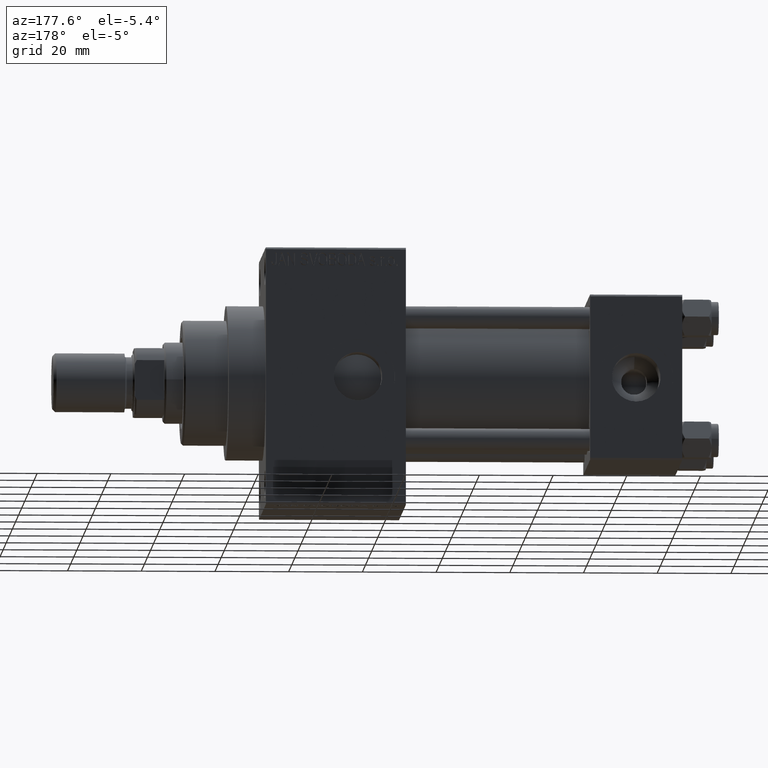
[diagram: clean part render]
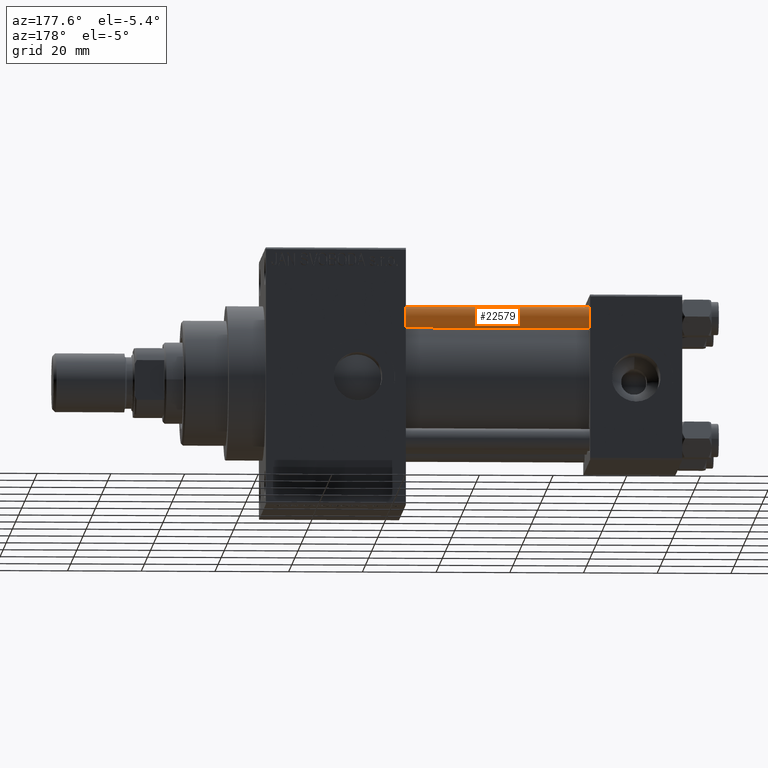
[diagram: same view with one face highlighted and labeled with its STEP entity id]
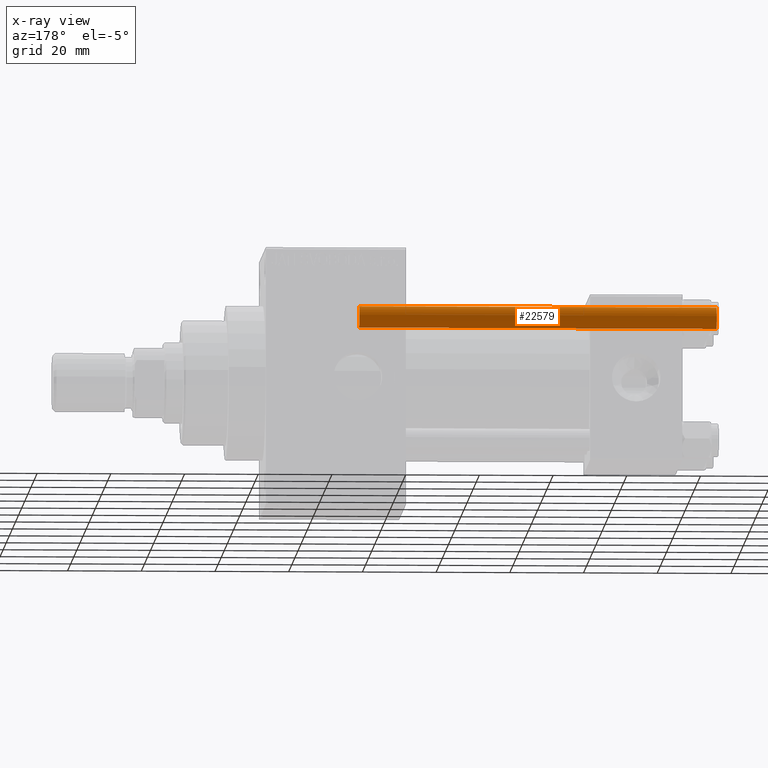
[diagram: x-ray of the same camera — body ghosted, the highlighted face saturated]
A machine part, auxiliary view. The second image highlights one B-rep face of the part: STEP entity #22579.
The next image is the same camera in x-ray: the body ghosted, the highlighted face saturated — about 0% of this face is hidden behind the body in this view.
In plain terms, the highlighted cylindrical surface (edge-blend (fillet) strip) has radius 3 mm, axis along (-1, -0, 0).
Its self-contained STEP definition (entity closure, byte-faithful):
#327 = CARTESIAN_POINT ( 'NONE',  ( -3.000000000000000444, 0.000000000000000000, 0.5000000000000281997 ) ) ;
#563 = CIRCLE ( 'NONE', #12870, 3.000000000000000444 ) ;
#1284 = CARTESIAN_POINT ( 'NONE',  ( 3.000000000000000444, 3.673940397442060361E-16, 97.50000000000001421 ) ) ;
#1627 = DIRECTION ( 'NONE',  ( 1.000000000000000000, 0.000000000000000000, 0.000000000000000000 ) ) ;
#2084 = DIRECTION ( 'NONE',  ( 0.000000000000000000, 0.000000000000000000, -1.000000000000000000 ) ) ;
#2355 = EDGE_LOOP ( 'NONE', ( #14123, #35259, #3700, #24264 ) ) ;
#2772 = CARTESIAN_POINT ( 'NONE',  ( -3.000000000000000444, 0.000000000000000000, 98.00000000000000000 ) ) ;
#3005 = VERTEX_POINT ( 'NONE', #30999 ) ;
#3700 = ORIENTED_EDGE ( 'NONE', *, *, #19713, .T. ) ;
#4019 = CARTESIAN_POINT ( 'NONE',  ( 0.000000000000000000, 0.000000000000000000, 0.5000000000000281997 ) ) ;
#9615 = CYLINDRICAL_SURFACE ( 'NONE', #31689, 3.000000000000000444 ) ;
#10640 = CARTESIAN_POINT ( 'NONE',  ( -3.000000000000000444, 0.000000000000000000, 97.50000000000001421 ) ) ;
#12030 = EDGE_CURVE ( 'NONE', #36146, #3005, #32709, .T. ) ;
#12524 = DIRECTION ( 'NONE',  ( -1.000000000000000000, 0.000000000000000000, 0.000000000000000000 ) ) ;
#12870 = AXIS2_PLACEMENT_3D ( 'NONE', #42728, #2084, #1627 ) ;
#13219 = DIRECTION ( 'NONE',  ( -0.000000000000000000, -0.000000000000000000, -1.000000000000000000 ) ) ;
#14123 = ORIENTED_EDGE ( 'NONE', *, *, #45793, .T. ) ;
#14435 = CARTESIAN_POINT ( 'NONE',  ( 3.000000000000000444, 3.673940397442060361E-16, 98.00000000000000000 ) ) ;
#14736 = AXIS2_PLACEMENT_3D ( 'NONE', #4019, #22320, #39464 ) ;
#19713 = EDGE_CURVE ( 'NONE', #3005, #29223, #25485, .T. ) ;
#22320 = DIRECTION ( 'NONE',  ( -0.000000000000000000, -0.000000000000000000, 1.000000000000000000 ) ) ;
#22579 = ADVANCED_FACE ( 'NONE', ( #38037 ), #9615, .T. ) ;
#24067 = CARTESIAN_POINT ( 'NONE',  ( 0.000000000000000000, 0.000000000000000000, 98.00000000000000000 ) ) ;
#24082 = VERTEX_POINT ( 'NONE', #10640 ) ;
#24264 = ORIENTED_EDGE ( 'NONE', *, *, #31293, .F. ) ;
#24675 = LINE ( 'NONE', #2772, #38069 ) ;
#25485 = CIRCLE ( 'NONE', #14736, 3.000000000000000444 ) ;
#29111 = DIRECTION ( 'NONE',  ( -0.000000000000000000, -0.000000000000000000, -1.000000000000000000 ) ) ;
#29223 = VERTEX_POINT ( 'NONE', #327 ) ;
#30999 = CARTESIAN_POINT ( 'NONE',  ( 3.000000000000000444, 3.673940397442060361E-16, 0.5000000000000281997 ) ) ;
#31293 = EDGE_CURVE ( 'NONE', #24082, #29223, #24675, .T. ) ;
#31689 = AXIS2_PLACEMENT_3D ( 'NONE', #24067, #13219, #12524 ) ;
#32709 = LINE ( 'NONE', #14435, #39472 ) ;
#35259 = ORIENTED_EDGE ( 'NONE', *, *, #12030, .T. ) ;
#36146 = VERTEX_POINT ( 'NONE', #1284 ) ;
#38037 = FACE_OUTER_BOUND ( 'NONE', #2355, .T. ) ;
#38069 = VECTOR ( 'NONE', #39822, 1000.000000000000000 ) ;
#39464 = DIRECTION ( 'NONE',  ( 1.000000000000000000, 0.000000000000000000, 0.000000000000000000 ) ) ;
#39472 = VECTOR ( 'NONE', #29111, 1000.000000000000000 ) ;
#39822 = DIRECTION ( 'NONE',  ( -0.000000000000000000, -0.000000000000000000, -1.000000000000000000 ) ) ;
#42728 = CARTESIAN_POINT ( 'NONE',  ( 0.000000000000000000, 0.000000000000000000, 97.50000000000001421 ) ) ;
#45793 = EDGE_CURVE ( 'NONE', #24082, #36146, #563, .T. ) ;